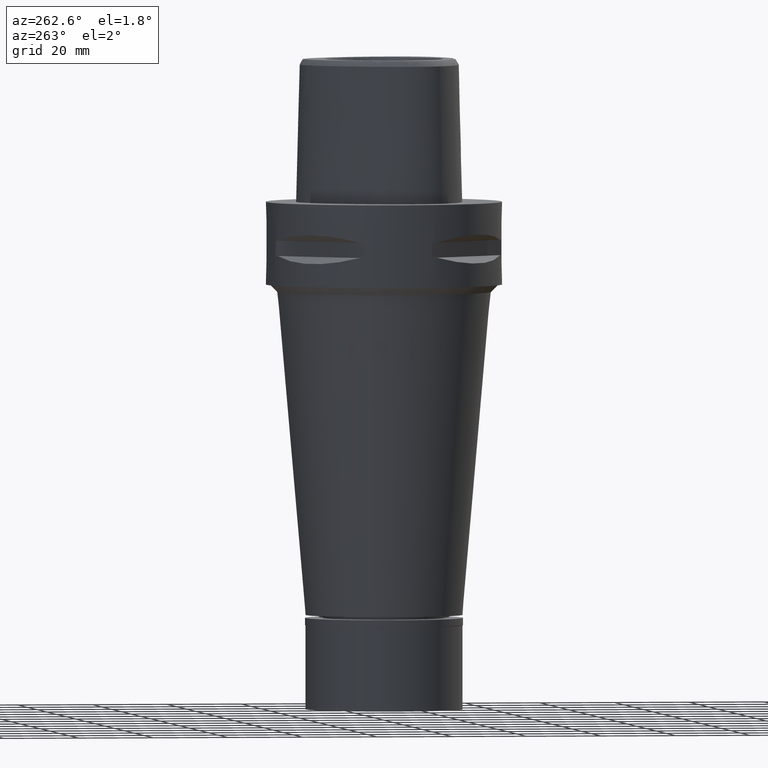
[diagram: clean part render]
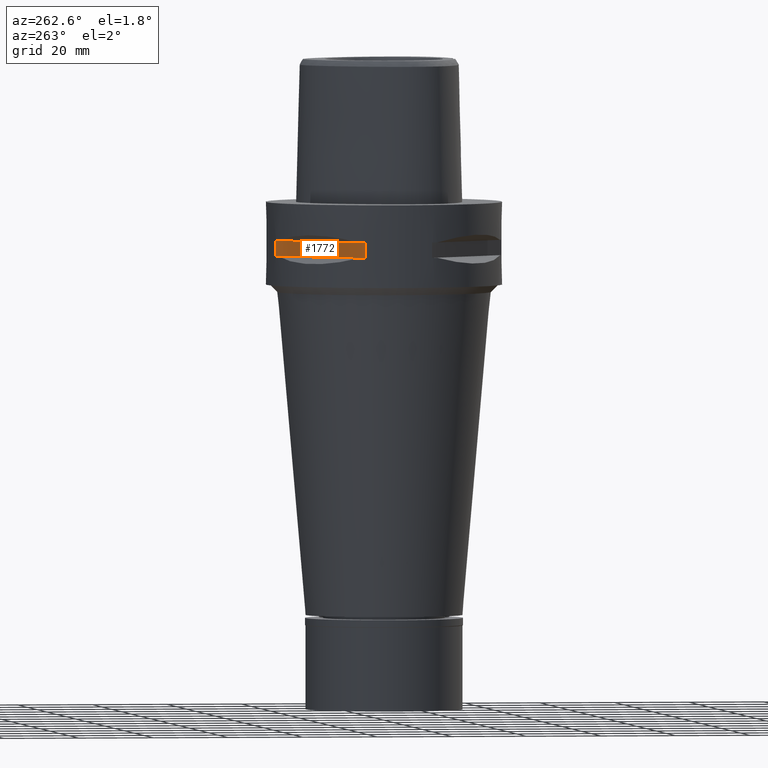
[diagram: same view with one face highlighted and labeled with its STEP entity id]
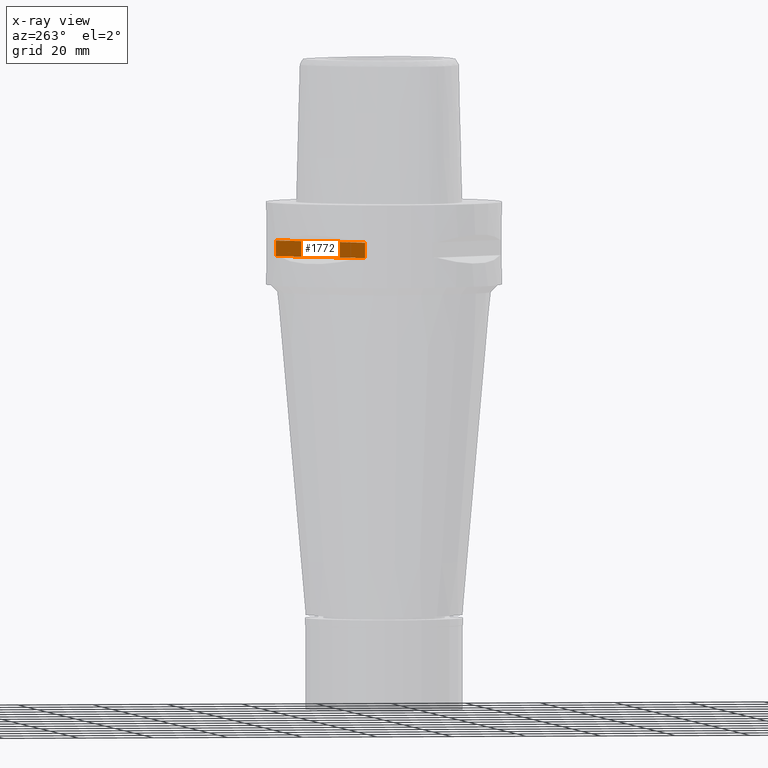
[diagram: x-ray of the same camera — body ghosted, the highlighted face saturated]
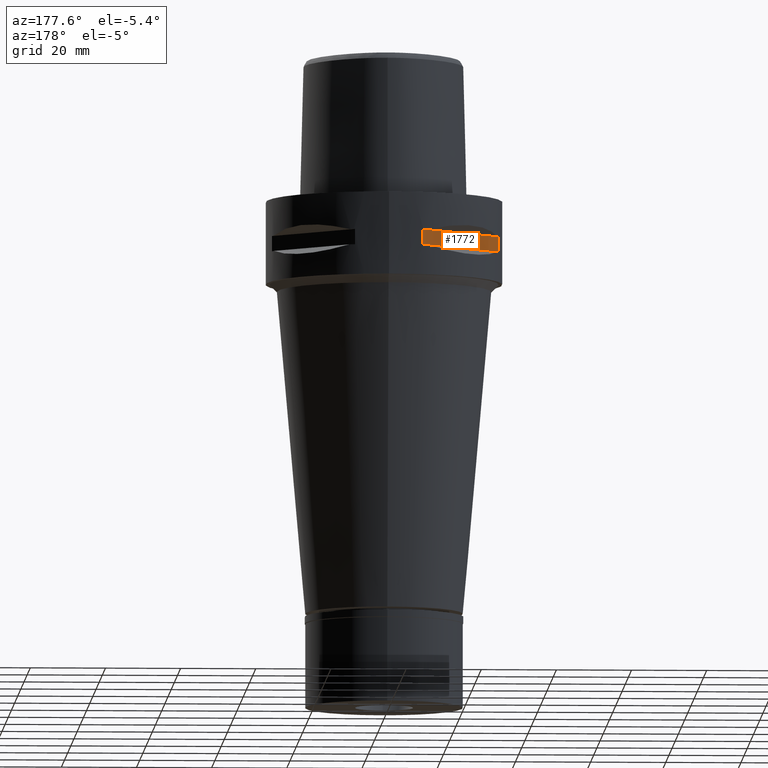
[diagram: same view with one face highlighted and labeled with its STEP entity id]
A machine part, auxiliary view. The second image highlights one B-rep face of the part: STEP entity #1772.
The next image is the same camera in x-ray: the body ghosted, the highlighted face saturated — about 0% of this face is hidden behind the body in this view.
A second angle (auxiliary view) of the same face is appended — the face is thin or edge-on in the first view.
In plain terms, the highlighted planar face has unit normal (0.7071, -0.7071, 0).
Its self-contained STEP definition (entity closure, byte-faithful):
#236 = VECTOR ( 'NONE', #1367, 1000.000000000000114 ) ;
#531 = CARTESIAN_POINT ( 'NONE',  ( -33.72899346260000186, 5.444722215136000187, -9.950000000000001066 ) ) ;
#701 = EDGE_CURVE ( 'NONE', #4367, #3464, #4354, .T. ) ;
#722 = AXIS2_PLACEMENT_3D ( 'NONE', #531, #950, #3225 ) ;
#928 = CARTESIAN_POINT ( 'NONE',  ( -8.981198972017999438, 30.19251670572000279, -14.05000000000000071 ) ) ;
#950 = DIRECTION ( 'NONE',  ( 0.7071067811865475727, -0.7071067811865475727, 0.0000000000000000000 ) ) ;
#1130 = DIRECTION ( 'NONE',  ( 0.0000000000000000000, 0.0000000000000000000, 1.000000000000000000 ) ) ;
#1268 = VERTEX_POINT ( 'NONE', #4587 ) ;
#1293 = ORIENTED_EDGE ( 'NONE', *, *, #1368, .F. ) ;
#1367 = DIRECTION ( 'NONE',  ( -0.7071067811865474617, -0.7071067811865474617, 0.0000000000000000000 ) ) ;
#1368 = EDGE_CURVE ( 'NONE', #1268, #3464, #1797, .T. ) ;
#1608 = CARTESIAN_POINT ( 'NONE',  ( -30.19251670572000279, 8.981198972019999616, -14.05000000000000071 ) ) ;
#1709 = EDGE_CURVE ( 'NONE', #1268, #1774, #2819, .T. ) ;
#1717 = CARTESIAN_POINT ( 'NONE',  ( -8.981198972017999438, 30.19251670572000279, -9.950000000000001066 ) ) ;
#1772 = ADVANCED_FACE ( 'NONE', ( #3688 ), #2525, .F. ) ;
#1774 = VERTEX_POINT ( 'NONE', #928 ) ;
#1797 = LINE ( 'NONE', #2168, #2596 ) ;
#2032 = VECTOR ( 'NONE', #4043, 1000.000000000000000 ) ;
#2110 = CARTESIAN_POINT ( 'NONE',  ( -30.19251670572000279, 8.981198972017999438, -9.950000000000001066 ) ) ;
#2168 = CARTESIAN_POINT ( 'NONE',  ( -8.981198972017999438, 30.19251670572000279, -9.950000000000001066 ) ) ;
#2215 = ORIENTED_EDGE ( 'NONE', *, *, #4591, .T. ) ;
#2523 = ORIENTED_EDGE ( 'NONE', *, *, #701, .T. ) ;
#2525 = PLANE ( 'NONE',  #722 ) ;
#2575 = DIRECTION ( 'NONE',  ( -0.7071067811865474617, -0.7071067811865474617, 0.0000000000000000000 ) ) ;
#2596 = VECTOR ( 'NONE', #2575, 1000.000000000000114 ) ;
#2669 = ORIENTED_EDGE ( 'NONE', *, *, #1709, .T. ) ;
#2674 = VECTOR ( 'NONE', #1130, 1000.000000000000000 ) ;
#2819 = LINE ( 'NONE', #1717, #2032 ) ;
#3225 = DIRECTION ( 'NONE',  ( 0.0000000000000000000, 0.0000000000000000000, -1.000000000000000000 ) ) ;
#3464 = VERTEX_POINT ( 'NONE', #2110 ) ;
#3688 = FACE_OUTER_BOUND ( 'NONE', #4041, .T. ) ;
#4032 = LINE ( 'NONE', #4078, #236 ) ;
#4041 = EDGE_LOOP ( 'NONE', ( #1293, #2669, #2215, #2523 ) ) ;
#4043 = DIRECTION ( 'NONE',  ( 0.0000000000000000000, 0.0000000000000000000, -1.000000000000000000 ) ) ;
#4078 = CARTESIAN_POINT ( 'NONE',  ( -8.981198972017999438, 30.19251670572000279, -14.05000000000000071 ) ) ;
#4354 = LINE ( 'NONE', #4637, #2674 ) ;
#4367 = VERTEX_POINT ( 'NONE', #1608 ) ;
#4587 = CARTESIAN_POINT ( 'NONE',  ( -8.981198972019999616, 30.19251670572000279, -9.950000000000001066 ) ) ;
#4591 = EDGE_CURVE ( 'NONE', #1774, #4367, #4032, .T. ) ;
#4637 = CARTESIAN_POINT ( 'NONE',  ( -30.19251670572000279, 8.981198972017999438, -14.05000000000000071 ) ) ;